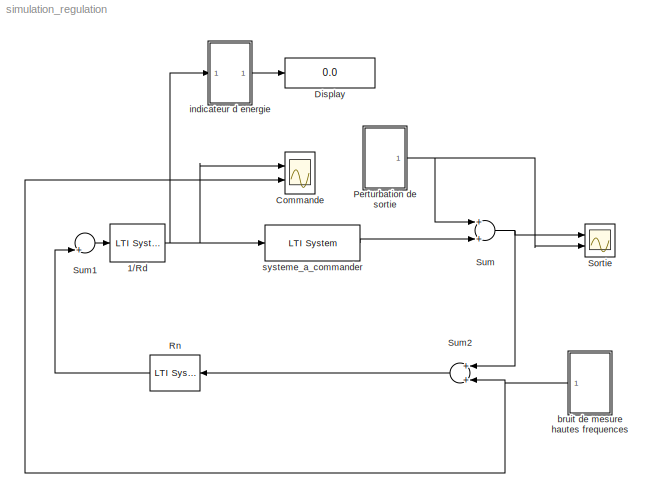
MODEL simulation_regulation
KIND model
BLOCK [Reference] 1//Rd  REF=cstblocks/LTI System
  FunctionWithSeparateData = off
  IC = []
  Ports = [1, 1]
  RTWMemSecDataConstants = Inherit from model
  RTWMemSecDataInternal = Inherit from model
  RTWMemSecDataParameters = Inherit from model
  RTWMemSecFuncExecute = Inherit from model
  RTWMemSecFuncInitTerm = Inherit from model
  ShowPortLabels = FromPortIcon
  SourceBlock = cstblocks/LTI System
  SourceType = LTI Block
  SystemSampleTime = -1
  sys = 1/Rd_tf
BLOCK [Scope] Commande
  DataFormat = StructureWithTime
  Floating = off
  LimitDataPoints = off
  MaxDataPoints = 50000
  NumInputPorts = 2
  Ports = [2]
  SampleTime = 0
  SaveName = ScopeData1
  TickLabels = on
  TimeRange = 10
  YMax = 2.5~0.125
  YMin = -2.25~-0.125
BLOCK [Display] Display
  Decimation = 1
  Lockdown = off
  Ports = [1]
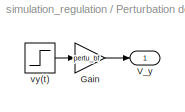
BLOCK [SubSystem] Perturbation de sortie
  FunctionWithSeparateData = off
  MinAlgLoopOccurrences = off
  Ports = [0, 1]
  RTWSystemCode = Auto
BLOCK [Gain] Perturbation de sortie/Gain
  Gain = pertu_bf
  OutDataType = sfix(16)
  OutDataTypeMode = Inherit via internal rule
  OutScaling = 2^0
  ParameterDataType = sfix(16)
  ParameterDataTypeMode = Inherit via internal rule
  ParameterScaling = 2^0
  SaturateOnIntegerOverflow = off
BLOCK [Outport] Perturbation de sortie/V_y
  IconDisplay = Port number
BLOCK [Step] Perturbation de sortie/vy(t)
  SampleTime = 0
  Time = 5
BLOCK [Reference] Rn  REF=cstblocks/LTI System
  FunctionWithSeparateData = off
  IC = []
  Ports = [1, 1]
  RTWMemSecDataConstants = Inherit from model
  RTWMemSecDataInternal = Inherit from model
  RTWMemSecDataParameters = Inherit from model
  RTWMemSecFuncExecute = Inherit from model
  RTWMemSecFuncInitTerm = Inherit from model
  ShowPortLabels = FromPortIcon
  SourceBlock = cstblocks/LTI System
  SourceType = LTI Block
  SystemSampleTime = -1
  sys = Rn_tf
BLOCK [Scope] Sortie
  DataFormat = StructureWithTime
  Floating = off
  LimitDataPoints = off
  MaxDataPoints = 50000
  NumInputPorts = 2
  Ports = [2]
  SampleTime = 0
  TickLabels = on
  TimeRange = 10
  YMax = 5~5
  YMin = -5~-5
BLOCK [Sum] Sum
  CollapseMode = All dimensions
  InputSameDT = off
  OutDataType = sfix(16)
  OutDataTypeMode = Inherit via internal rule
  OutScaling = 2^0
  Ports = [2, 1]
  SaturateOnIntegerOverflow = off
BLOCK [Sum] Sum1
  CollapseMode = All dimensions
  InputSameDT = off
  Inputs = |+-
  OutDataType = sfix(16)
  OutDataTypeMode = Inherit via internal rule
  OutScaling = 2^0
  Ports = [2, 1]
  SaturateOnIntegerOverflow = off
BLOCK [Sum] Sum2
  CollapseMode = All dimensions
  InputSameDT = off
  OutDataType = sfix(16)
  OutDataTypeMode = Inherit via internal rule
  OutScaling = 2^0
  Ports = [2, 1]
  SaturateOnIntegerOverflow = off
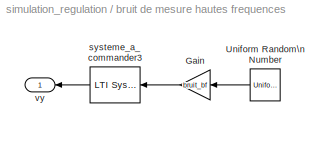
BLOCK [SubSystem] bruit de mesure hautes frequences
  FunctionWithSeparateData = off
  MinAlgLoopOccurrences = off
  Ports = [0, 1]
  RTWSystemCode = Auto
BLOCK [Gain] bruit de mesure hautes frequences/Gain
  Gain = bruit_bf
  OutDataType = sfix(16)
  OutDataTypeMode = Inherit via internal rule
  OutScaling = 2^0
  ParameterDataType = sfix(16)
  ParameterDataTypeMode = Inherit via internal rule
  ParameterScaling = 2^0
  SaturateOnIntegerOverflow = off
BLOCK [UniformRandomNumber] bruit de mesure hautes frequences/Uniform Random\nNumber
  Maximum = 0.1
  Minimum = -0.1
  SampleTime = 0
BLOCK [Reference] bruit de mesure hautes frequences/systeme_a_commander3  REF=cstblocks/LTI System
  FunctionWithSeparateData = off
  IC = []
  Ports = [1, 1]
  RTWMemSecDataConstants = Inherit from model
  RTWMemSecDataInternal = Inherit from model
  RTWMemSecDataParameters = Inherit from model
  RTWMemSecFuncExecute = Inherit from model
  RTWMemSecFuncInitTerm = Inherit from model
  ShowPortLabels = FromPortIcon
  SourceBlock = cstblocks/LTI System
  SourceType = LTI Block
  SystemSampleTime = -1
  sys = tf([1 8*1e4],[1 1e5])
BLOCK [Outport] bruit de mesure hautes frequences/vy
  IconDisplay = Port number
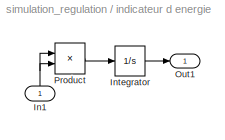
BLOCK [SubSystem] indicateur d energie
  FunctionWithSeparateData = off
  MinAlgLoopOccurrences = off
  Ports = [1, 1]
  RTWSystemCode = Auto
BLOCK [Inport] indicateur d energie/In1
  IconDisplay = Port number
BLOCK [Integrator] indicateur d energie/Integrator
  Ports = [1, 1]
BLOCK [Outport] indicateur d energie/Out1
  IconDisplay = Port number
BLOCK [Product] indicateur d energie/Product
  CollapseMode = All dimensions
  InputSameDT = off
  OutDataType = sfix(16)
  OutDataTypeMode = Inherit via internal rule
  OutScaling = 2^0
  Ports = [2, 1]
  SaturateOnIntegerOverflow = off
BLOCK [Reference] systeme_a_commander  REF=cstblocks/LTI System
  FunctionWithSeparateData = off
  IC = []
  Ports = [1, 1]
  RTWMemSecDataConstants = Inherit from model
  RTWMemSecDataInternal = Inherit from model
  RTWMemSecDataParameters = Inherit from model
  RTWMemSecFuncExecute = Inherit from model
  RTWMemSecFuncInitTerm = Inherit from model
  ShowPortLabels = FromPortIcon
  SourceBlock = cstblocks/LTI System
  SourceType = LTI Block
  SystemSampleTime = -1
  sys = G1
NET 1//Rd:1 -> Commande:1, indicateur d energie:1, systeme_a_commander:1
LINE Perturbation de sortie/Gain:1 -> Perturbation de sortie/V_y:1
LINE Perturbation de sortie/vy(t):1 -> Perturbation de sortie/Gain:1
NET Perturbation de sortie:1 -> Sortie:2, Sum:1
LINE Rn:1 -> Sum1:2
LINE Sum1:1 -> 1//Rd:1
LINE Sum2:1 -> Rn:1
NET Sum:1 -> Sortie:1, Sum2:1
LINE bruit de mesure hautes frequences/Gain:1 -> bruit de mesure hautes frequences/systeme_a_commander3:1
LINE bruit de mesure hautes frequences/Uniform Random\nNumber:1 -> bruit de mesure hautes frequences/Gain:1
LINE bruit de mesure hautes frequences/systeme_a_commander3:1 -> bruit de mesure hautes frequences/vy:1
NET bruit de mesure hautes frequences:1 -> Commande:2, Sum2:2
NET indicateur d energie/In1:1 -> indicateur d energie/Product:1, indicateur d energie/Product:2
LINE indicateur d energie/Integrator:1 -> indicateur d energie/Out1:1
LINE indicateur d energie/Product:1 -> indicateur d energie/Integrator:1
LINE indicateur d energie:1 -> Display:1
LINE systeme_a_commander:1 -> Sum:2
note: NET lines group one-source signal fan-out (src -> all destinations, sorted); 1:1 wires keep LINE
